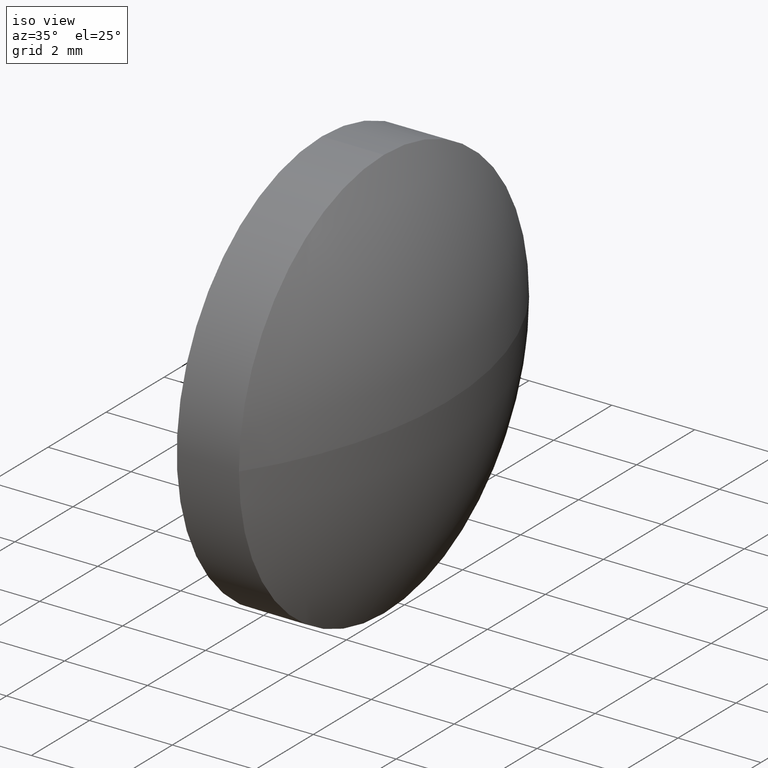
[diagram: clean part render]
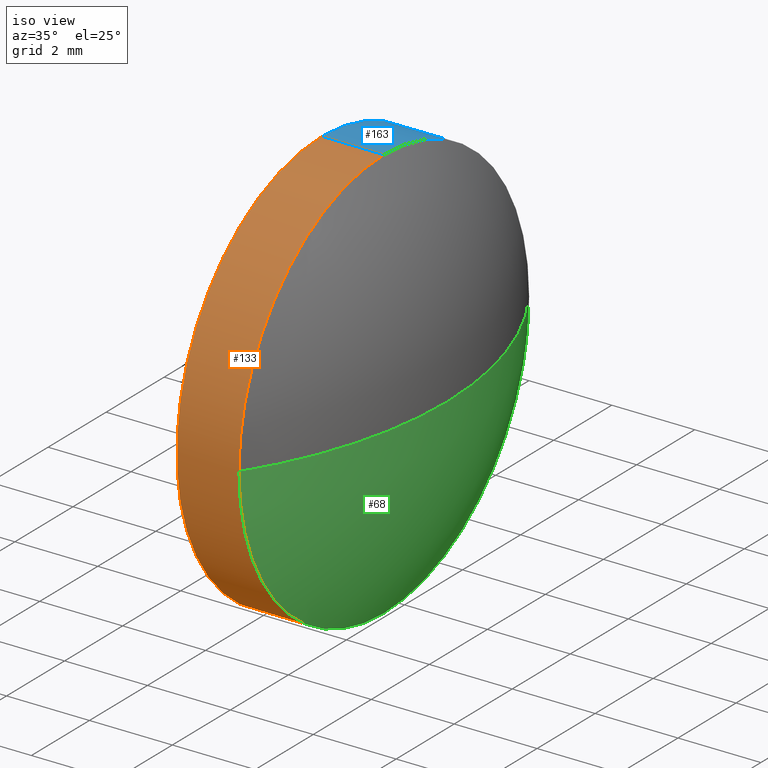
[diagram: same view with three faces highlighted in distinct colors, each labeled with its STEP entity id]
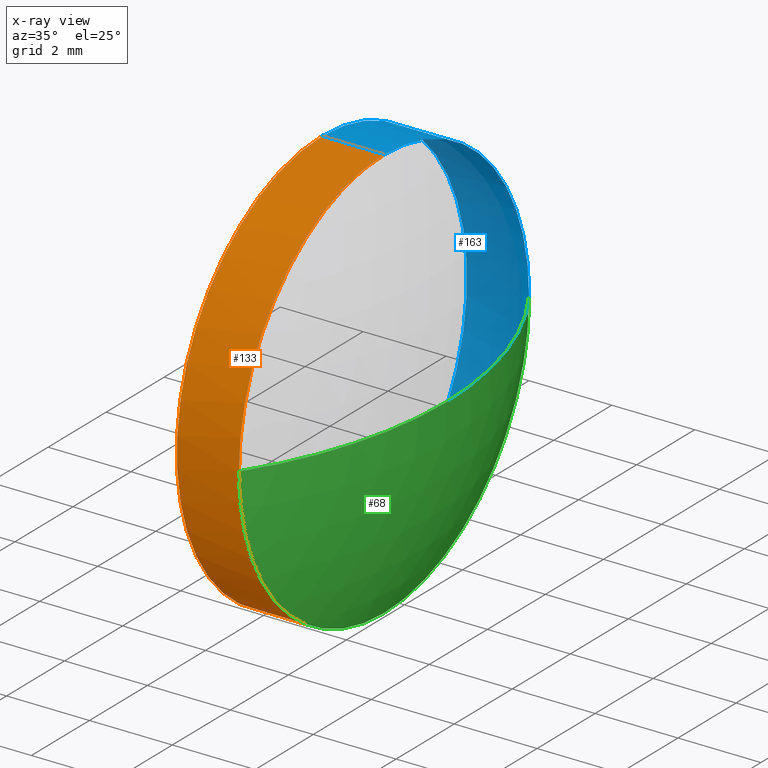
[diagram: x-ray of the same camera — body ghosted, the three highlighted faces saturated]
A machine part, iso view with three faces highlighted in distinct colors.
The next image is the same camera in x-ray (body ghosted, the three faces saturated) — at least one of them is partly hidden behind the body in this view.
Their STEP definitions:

[orange] entity #133 — the highlighted cylindrical surface (partial cylindrical patch) has radius 5 mm, axis along (-1, -0, -0).
#3 = VERTEX_POINT ( 'NONE', #169 ) ;
#8 = ORIENTED_EDGE ( 'NONE', *, *, #56, .T. ) ;
#24 = CARTESIAN_POINT ( 'NONE',  ( 366.1618154651758900, 32.06401895449350500, -6.123233995736766300E-016 ) ) ;
#27 = FACE_OUTER_BOUND ( 'NONE', #46, .T. ) ;
#28 = DIRECTION ( 'NONE',  ( -1.000000000000000000, -0.0000000000000000000, -0.0000000000000000000 ) ) ;
#32 = CARTESIAN_POINT ( 'NONE',  ( 364.6618154651758900, 37.06401895449352000, -4.999999999999997300 ) ) ;
#34 = EDGE_CURVE ( 'NONE', #3, #149, #182, .T. ) ;
#36 = EDGE_CURVE ( 'NONE', #149, #99, #89, .T. ) ;
#39 = CIRCLE ( 'NONE', #108, 4.999999999999997300 ) ;
#43 = CARTESIAN_POINT ( 'NONE',  ( 366.1618154651758900, 37.06401895449352000, 4.999999999999997300 ) ) ;
#46 = EDGE_LOOP ( 'NONE', ( #132, #8, #168, #162, #122 ) ) ;
#47 = AXIS2_PLACEMENT_3D ( 'NONE', #117, #28, #154 ) ;
#50 = LINE ( 'NONE', #59, #175 ) ;
#56 = EDGE_CURVE ( 'NONE', #3, #61, #39, .T. ) ;
#59 = CARTESIAN_POINT ( 'NONE',  ( 363.5195857727315500, 37.06401895449352000, 4.999999999999997300 ) ) ;
#61 = VERTEX_POINT ( 'NONE', #24 ) ;
#62 = CARTESIAN_POINT ( 'NONE',  ( 366.1618154651758900, 37.06401895449352000, 0.0000000000000000000 ) ) ;
#63 = CARTESIAN_POINT ( 'NONE',  ( 364.6618154651758900, 37.06401895449352000, 4.999999999999997300 ) ) ;
#70 = EDGE_CURVE ( 'NONE', #86, #99, #50, .T. ) ;
#76 = CIRCLE ( 'NONE', #144, 4.999999999999997300 ) ;
#80 = EDGE_CURVE ( 'NONE', #61, #86, #76, .T. ) ;
#86 = VERTEX_POINT ( 'NONE', #43 ) ;
#89 = CIRCLE ( 'NONE', #47, 4.999999999999997300 ) ;
#93 = DIRECTION ( 'NONE',  ( -1.000000000000000000, -0.0000000000000000000, -0.0000000000000000000 ) ) ;
#96 = VECTOR ( 'NONE', #115, 1000.000000000000000 ) ;
#99 = VERTEX_POINT ( 'NONE', #63 ) ;
#102 = AXIS2_PLACEMENT_3D ( 'NONE', #131, #148, #158 ) ;
#107 = DIRECTION ( 'NONE',  ( 0.0000000000000000000, 0.0000000000000000000, 1.000000000000000000 ) ) ;
#108 = AXIS2_PLACEMENT_3D ( 'NONE', #139, #140, #127 ) ;
#115 = DIRECTION ( 'NONE',  ( -1.000000000000000000, -0.0000000000000000000, -0.0000000000000000000 ) ) ;
#117 = CARTESIAN_POINT ( 'NONE',  ( 364.6618154651758900, 37.06401895449352000, 0.0000000000000000000 ) ) ;
#122 = ORIENTED_EDGE ( 'NONE', *, *, #36, .F. ) ;
#123 = CYLINDRICAL_SURFACE ( 'NONE', #102, 4.999999999999997300 ) ;
#127 = DIRECTION ( 'NONE',  ( 0.0000000000000000000, 0.0000000000000000000, 1.000000000000000000 ) ) ;
#131 = CARTESIAN_POINT ( 'NONE',  ( 363.5195857727315500, 37.06401895449352000, 0.0000000000000000000 ) ) ;
#132 = ORIENTED_EDGE ( 'NONE', *, *, #34, .F. ) ;
#133 = ADVANCED_FACE ( 'NONE', ( #27 ), #123, .T. ) ;
#139 = CARTESIAN_POINT ( 'NONE',  ( 366.1618154651758900, 37.06401895449352000, 0.0000000000000000000 ) ) ;
#140 = DIRECTION ( 'NONE',  ( -1.000000000000000000, -0.0000000000000000000, -0.0000000000000000000 ) ) ;
#144 = AXIS2_PLACEMENT_3D ( 'NONE', #62, #183, #107 ) ;
#148 = DIRECTION ( 'NONE',  ( -1.000000000000000000, -0.0000000000000000000, -0.0000000000000000000 ) ) ;
#149 = VERTEX_POINT ( 'NONE', #32 ) ;
#154 = DIRECTION ( 'NONE',  ( 0.0000000000000000000, 0.0000000000000000000, 1.000000000000000000 ) ) ;
#156 = CARTESIAN_POINT ( 'NONE',  ( 363.5195857727315500, 37.06401895449352000, -4.999999999999997300 ) ) ;
#158 = DIRECTION ( 'NONE',  ( 0.0000000000000000000, 0.0000000000000000000, 1.000000000000000000 ) ) ;
#162 = ORIENTED_EDGE ( 'NONE', *, *, #70, .T. ) ;
#168 = ORIENTED_EDGE ( 'NONE', *, *, #80, .T. ) ;
#169 = CARTESIAN_POINT ( 'NONE',  ( 366.1618154651758900, 37.06401895449352000, -4.999999999999997300 ) ) ;
#175 = VECTOR ( 'NONE', #93, 1000.000000000000000 ) ;
#182 = LINE ( 'NONE', #156, #96 ) ;
#183 = DIRECTION ( 'NONE',  ( -1.000000000000000000, -0.0000000000000000000, -0.0000000000000000000 ) ) ;

[blue] entity #163 — the highlighted cylindrical surface (partial cylindrical patch) has radius 5 mm, axis along (-1, -0, -0).
#3 = VERTEX_POINT ( 'NONE', #169 ) ;
#9 = DIRECTION ( 'NONE',  ( -1.000000000000000000, -0.0000000000000000000, -0.0000000000000000000 ) ) ;
#15 = CARTESIAN_POINT ( 'NONE',  ( 364.6618154651758900, 37.06401895449352000, 0.0000000000000000000 ) ) ;
#22 = CARTESIAN_POINT ( 'NONE',  ( 366.1618154651758900, 37.06401895449352000, 0.0000000000000000000 ) ) ;
#32 = CARTESIAN_POINT ( 'NONE',  ( 364.6618154651758900, 37.06401895449352000, -4.999999999999997300 ) ) ;
#34 = EDGE_CURVE ( 'NONE', #3, #149, #182, .T. ) ;
#35 = CYLINDRICAL_SURFACE ( 'NONE', #95, 4.999999999999997300 ) ;
#38 = CIRCLE ( 'NONE', #165, 4.999999999999997300 ) ;
#43 = CARTESIAN_POINT ( 'NONE',  ( 366.1618154651758900, 37.06401895449352000, 4.999999999999997300 ) ) ;
#45 = CARTESIAN_POINT ( 'NONE',  ( 363.5195857727315500, 37.06401895449352000, 0.0000000000000000000 ) ) ;
#49 = AXIS2_PLACEMENT_3D ( 'NONE', #22, #178, #101 ) ;
#50 = LINE ( 'NONE', #59, #175 ) ;
#53 = EDGE_CURVE ( 'NONE', #86, #69, #164, .T. ) ;
#59 = CARTESIAN_POINT ( 'NONE',  ( 363.5195857727315500, 37.06401895449352000, 4.999999999999997300 ) ) ;
#63 = CARTESIAN_POINT ( 'NONE',  ( 364.6618154651758900, 37.06401895449352000, 4.999999999999997300 ) ) ;
#67 = DIRECTION ( 'NONE',  ( 0.0000000000000000000, 0.0000000000000000000, 1.000000000000000000 ) ) ;
#69 = VERTEX_POINT ( 'NONE', #161 ) ;
#70 = EDGE_CURVE ( 'NONE', #86, #99, #50, .T. ) ;
#71 = CIRCLE ( 'NONE', #83, 4.999999999999997300 ) ;
#83 = AXIS2_PLACEMENT_3D ( 'NONE', #15, #9, #67 ) ;
#86 = VERTEX_POINT ( 'NONE', #43 ) ;
#91 = DIRECTION ( 'NONE',  ( 0.0000000000000000000, 0.0000000000000000000, 1.000000000000000000 ) ) ;
#93 = DIRECTION ( 'NONE',  ( -1.000000000000000000, -0.0000000000000000000, -0.0000000000000000000 ) ) ;
#94 = DIRECTION ( 'NONE',  ( 0.0000000000000000000, 0.0000000000000000000, 1.000000000000000000 ) ) ;
#95 = AXIS2_PLACEMENT_3D ( 'NONE', #45, #129, #94 ) ;
#96 = VECTOR ( 'NONE', #115, 1000.000000000000000 ) ;
#99 = VERTEX_POINT ( 'NONE', #63 ) ;
#101 = DIRECTION ( 'NONE',  ( 0.0000000000000000000, 0.0000000000000000000, 1.000000000000000000 ) ) ;
#109 = DIRECTION ( 'NONE',  ( -1.000000000000000000, -0.0000000000000000000, -0.0000000000000000000 ) ) ;
#115 = DIRECTION ( 'NONE',  ( -1.000000000000000000, -0.0000000000000000000, -0.0000000000000000000 ) ) ;
#116 = EDGE_LOOP ( 'NONE', ( #125, #128, #186, #152, #151 ) ) ;
#125 = ORIENTED_EDGE ( 'NONE', *, *, #180, .T. ) ;
#128 = ORIENTED_EDGE ( 'NONE', *, *, #34, .T. ) ;
#129 = DIRECTION ( 'NONE',  ( -1.000000000000000000, -0.0000000000000000000, -0.0000000000000000000 ) ) ;
#137 = FACE_OUTER_BOUND ( 'NONE', #116, .T. ) ;
#149 = VERTEX_POINT ( 'NONE', #32 ) ;
#151 = ORIENTED_EDGE ( 'NONE', *, *, #53, .T. ) ;
#152 = ORIENTED_EDGE ( 'NONE', *, *, #70, .F. ) ;
#156 = CARTESIAN_POINT ( 'NONE',  ( 363.5195857727315500, 37.06401895449352000, -4.999999999999997300 ) ) ;
#157 = CARTESIAN_POINT ( 'NONE',  ( 366.1618154651758900, 37.06401895449352000, 0.0000000000000000000 ) ) ;
#161 = CARTESIAN_POINT ( 'NONE',  ( 366.1618154651758900, 42.06401895449352000, 0.0000000000000000000 ) ) ;
#163 = ADVANCED_FACE ( 'NONE', ( #137 ), #35, .T. ) ;
#164 = CIRCLE ( 'NONE', #49, 4.999999999999997300 ) ;
#165 = AXIS2_PLACEMENT_3D ( 'NONE', #157, #109, #91 ) ;
#169 = CARTESIAN_POINT ( 'NONE',  ( 366.1618154651758900, 37.06401895449352000, -4.999999999999997300 ) ) ;
#174 = EDGE_CURVE ( 'NONE', #99, #149, #71, .T. ) ;
#175 = VECTOR ( 'NONE', #93, 1000.000000000000000 ) ;
#178 = DIRECTION ( 'NONE',  ( -1.000000000000000000, -0.0000000000000000000, -0.0000000000000000000 ) ) ;
#180 = EDGE_CURVE ( 'NONE', #69, #3, #38, .T. ) ;
#182 = LINE ( 'NONE', #156, #96 ) ;
#186 = ORIENTED_EDGE ( 'NONE', *, *, #174, .F. ) ;

[green] entity #68 — the highlighted spherical surface has radius 9.0833 mm.
#3 = VERTEX_POINT ( 'NONE', #169 ) ;
#5 = EDGE_CURVE ( 'NONE', #10, #69, #81, .T. ) ;
#10 = VERTEX_POINT ( 'NONE', #103 ) ;
#16 = AXIS2_PLACEMENT_3D ( 'NONE', #104, #153, #181 ) ;
#18 = ORIENTED_EDGE ( 'NONE', *, *, #180, .F. ) ;
#20 = EDGE_CURVE ( 'NONE', #10, #61, #177, .T. ) ;
#24 = CARTESIAN_POINT ( 'NONE',  ( 366.1618154651758900, 32.06401895449350500, -6.123233995736766300E-016 ) ) ;
#25 = DIRECTION ( 'NONE',  ( 0.0000000000000000000, 1.000000000000000000, 1.224646799147353500E-016 ) ) ;
#38 = CIRCLE ( 'NONE', #165, 4.999999999999997300 ) ;
#39 = CIRCLE ( 'NONE', #108, 4.999999999999997300 ) ;
#55 = FACE_OUTER_BOUND ( 'NONE', #105, .T. ) ;
#56 = EDGE_CURVE ( 'NONE', #3, #61, #39, .T. ) ;
#61 = VERTEX_POINT ( 'NONE', #24 ) ;
#65 = DIRECTION ( 'NONE',  ( 0.0000000000000000000, 1.000000000000000000, 0.0000000000000000000 ) ) ;
#68 = ADVANCED_FACE ( 'NONE', ( #55 ), #85, .T. ) ;
#69 = VERTEX_POINT ( 'NONE', #161 ) ;
#72 = CARTESIAN_POINT ( 'NONE',  ( 358.5784821318425200, 37.06401895449350500, 0.0000000000000000000 ) ) ;
#78 = ORIENTED_EDGE ( 'NONE', *, *, #56, .F. ) ;
#81 = CIRCLE ( 'NONE', #16, 9.083333333333387200 ) ;
#85 = SPHERICAL_SURFACE ( 'NONE', #134, 9.083333333333387200 ) ;
#88 = AXIS2_PLACEMENT_3D ( 'NONE', #72, #171, #25 ) ;
#91 = DIRECTION ( 'NONE',  ( 0.0000000000000000000, 0.0000000000000000000, 1.000000000000000000 ) ) ;
#97 = ORIENTED_EDGE ( 'NONE', *, *, #5, .F. ) ;
#103 = CARTESIAN_POINT ( 'NONE',  ( 367.6618154651758900, 37.06401895449350500, 0.0000000000000000000 ) ) ;
#104 = CARTESIAN_POINT ( 'NONE',  ( 358.5784821318425200, 37.06401895449350500, 0.0000000000000000000 ) ) ;
#105 = EDGE_LOOP ( 'NONE', ( #97, #124, #78, #18 ) ) ;
#108 = AXIS2_PLACEMENT_3D ( 'NONE', #139, #140, #127 ) ;
#109 = DIRECTION ( 'NONE',  ( -1.000000000000000000, -0.0000000000000000000, -0.0000000000000000000 ) ) ;
#124 = ORIENTED_EDGE ( 'NONE', *, *, #20, .T. ) ;
#126 = CARTESIAN_POINT ( 'NONE',  ( 358.5784821318425200, 37.06401895449350500, 0.0000000000000000000 ) ) ;
#127 = DIRECTION ( 'NONE',  ( 0.0000000000000000000, 0.0000000000000000000, 1.000000000000000000 ) ) ;
#134 = AXIS2_PLACEMENT_3D ( 'NONE', #126, #146, #65 ) ;
#139 = CARTESIAN_POINT ( 'NONE',  ( 366.1618154651758900, 37.06401895449352000, 0.0000000000000000000 ) ) ;
#140 = DIRECTION ( 'NONE',  ( -1.000000000000000000, -0.0000000000000000000, -0.0000000000000000000 ) ) ;
#146 = DIRECTION ( 'NONE',  ( -0.0000000000000000000, 0.0000000000000000000, -1.000000000000000000 ) ) ;
#153 = DIRECTION ( 'NONE',  ( -0.0000000000000000000, 0.0000000000000000000, 1.000000000000000000 ) ) ;
#157 = CARTESIAN_POINT ( 'NONE',  ( 366.1618154651758900, 37.06401895449352000, 0.0000000000000000000 ) ) ;
#161 = CARTESIAN_POINT ( 'NONE',  ( 366.1618154651758900, 42.06401895449352000, 0.0000000000000000000 ) ) ;
#165 = AXIS2_PLACEMENT_3D ( 'NONE', #157, #109, #91 ) ;
#169 = CARTESIAN_POINT ( 'NONE',  ( 366.1618154651758900, 37.06401895449352000, -4.999999999999997300 ) ) ;
#171 = DIRECTION ( 'NONE',  ( 0.0000000000000000000, 1.224646799147353200E-016, -1.000000000000000000 ) ) ;
#177 = CIRCLE ( 'NONE', #88, 9.083333333333387200 ) ;
#180 = EDGE_CURVE ( 'NONE', #69, #3, #38, .T. ) ;
#181 = DIRECTION ( 'NONE',  ( 1.000000000000000000, 0.0000000000000000000, 0.0000000000000000000 ) ) ;